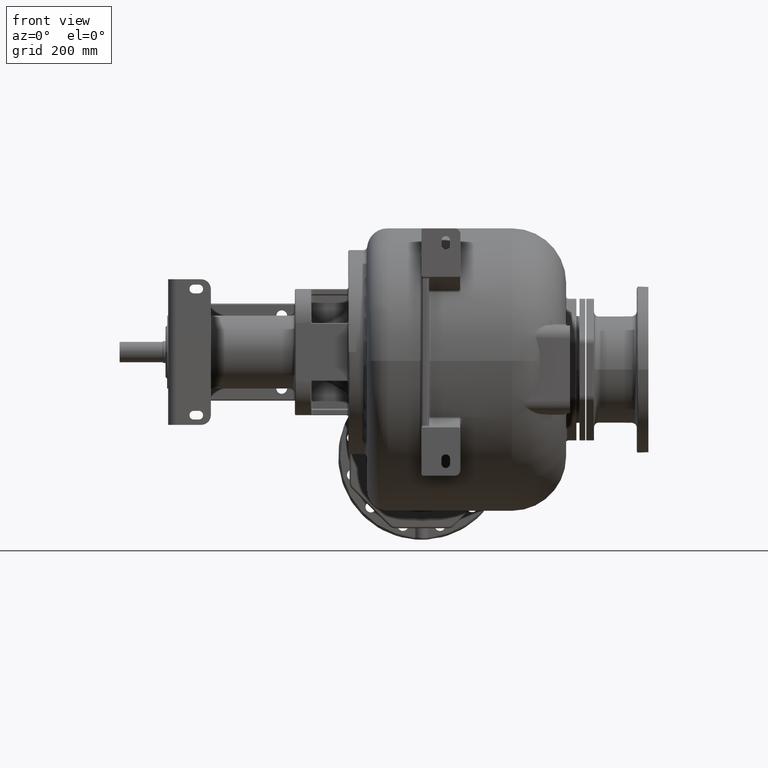
[diagram: clean part render]
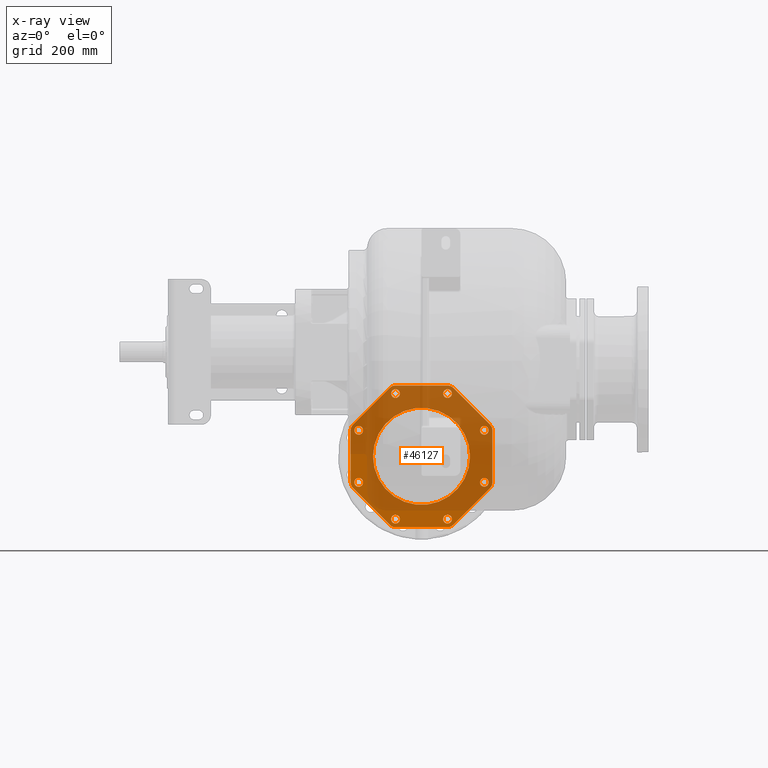
[diagram: x-ray — body ghosted, one internal face saturated and labeled with its STEP entity id]
A machine part, front view, then the same camera in x-ray: the body is ghosted and one INTERNAL B-rep face — a face not visible from any outside direction — is saturated and labeled: STEP entity #46127.
In plain terms, the highlighted planar face has unit normal (0, -1, 0).
Its self-contained STEP definition (entity closure, byte-faithful):
#43880=CARTESIAN_POINT('',(-5.E1,6.92E2,-2.15E2));
#43881=DIRECTION('',(0.E0,-1.E0,0.E0));
#43882=DIRECTION('',(-1.E0,0.E0,0.E0));
#43883=AXIS2_PLACEMENT_3D('',#43880,#43881,#43882);
#44194=CARTESIAN_POINT('',(-5.E1,6.92E2,-2.15E2));
#44195=DIRECTION('',(0.E0,-1.E0,0.E0));
#44196=DIRECTION('',(1.E0,0.E0,0.E0));
#44197=AXIS2_PLACEMENT_3D('',#44194,#44195,#44196);
#44203=CARTESIAN_POINT('',(7.934313455158E1,6.92E2,-1.614243194689E2));
#44204=DIRECTION('',(0.E0,1.E0,0.E0));
#44205=DIRECTION('',(1.E0,0.E0,0.E0));
#44206=AXIS2_PLACEMENT_3D('',#44203,#44204,#44205);
#44208=CARTESIAN_POINT('',(7.934313455158E1,6.92E2,-1.614243194689E2));
#44209=DIRECTION('',(0.E0,1.E0,0.E0));
#44210=DIRECTION('',(-1.E0,0.E0,0.E0));
#44211=AXIS2_PLACEMENT_3D('',#44208,#44209,#44210);
#44213=CARTESIAN_POINT('',(7.934313455158E1,6.92E2,-2.685756805311E2));
#44214=DIRECTION('',(0.E0,1.E0,0.E0));
#44215=DIRECTION('',(7.071067811865E-1,0.E0,-7.071067811866E-1));
#44216=AXIS2_PLACEMENT_3D('',#44213,#44214,#44215);
#44218=CARTESIAN_POINT('',(7.934313455158E1,6.92E2,-2.685756805311E2));
#44219=DIRECTION('',(0.E0,1.E0,0.E0));
#44220=DIRECTION('',(-7.071067811865E-1,0.E0,7.071067811865E-1));
#44221=AXIS2_PLACEMENT_3D('',#44218,#44219,#44220);
#44223=CARTESIAN_POINT('',(3.575680531113E0,6.92E2,-3.443431345516E2));
#44224=DIRECTION('',(0.E0,1.E0,0.E0));
#44225=DIRECTION('',(0.E0,0.E0,-1.E0));
#44226=AXIS2_PLACEMENT_3D('',#44223,#44224,#44225);
#44228=CARTESIAN_POINT('',(3.575680531113E0,6.92E2,-3.443431345516E2));
#44229=DIRECTION('',(0.E0,1.E0,0.E0));
#44230=DIRECTION('',(0.E0,0.E0,1.E0));
#44231=AXIS2_PLACEMENT_3D('',#44228,#44229,#44230);
#44233=CARTESIAN_POINT('',(-1.035756805311E2,6.92E2,-3.443431345516E2));
#44234=DIRECTION('',(0.E0,1.E0,0.E0));
#44235=DIRECTION('',(-7.071067811866E-1,0.E0,-7.071067811865E-1));
#44236=AXIS2_PLACEMENT_3D('',#44233,#44234,#44235);
#44238=CARTESIAN_POINT('',(-1.035756805311E2,6.92E2,-3.443431345516E2));
#44239=DIRECTION('',(0.E0,1.E0,0.E0));
#44240=DIRECTION('',(7.071067811865E-1,0.E0,7.071067811866E-1));
#44241=AXIS2_PLACEMENT_3D('',#44238,#44239,#44240);
#44243=CARTESIAN_POINT('',(-1.793431345516E2,6.92E2,-2.685756805311E2));
#44244=DIRECTION('',(0.E0,1.E0,0.E0));
#44245=DIRECTION('',(-1.E0,0.E0,0.E0));
#44246=AXIS2_PLACEMENT_3D('',#44243,#44244,#44245);
#44248=CARTESIAN_POINT('',(-1.793431345516E2,6.92E2,-2.685756805311E2));
#44249=DIRECTION('',(0.E0,1.E0,0.E0));
#44250=DIRECTION('',(1.E0,0.E0,0.E0));
#44251=AXIS2_PLACEMENT_3D('',#44248,#44249,#44250);
#44253=CARTESIAN_POINT('',(-1.793431345516E2,6.92E2,-1.614243194689E2));
#44254=DIRECTION('',(0.E0,1.E0,0.E0));
#44255=DIRECTION('',(-7.071067811865E-1,0.E0,7.071067811866E-1));
#44256=AXIS2_PLACEMENT_3D('',#44253,#44254,#44255);
#44258=CARTESIAN_POINT('',(-1.793431345516E2,6.92E2,-1.614243194689E2));
#44259=DIRECTION('',(0.E0,1.E0,0.E0));
#44260=DIRECTION('',(7.071067811865E-1,0.E0,-7.071067811865E-1));
#44261=AXIS2_PLACEMENT_3D('',#44258,#44259,#44260);
#44263=CARTESIAN_POINT('',(-1.035756805311E2,6.92E2,-8.565686544842E1));
#44264=DIRECTION('',(0.E0,1.E0,0.E0));
#44265=DIRECTION('',(0.E0,0.E0,1.E0));
#44266=AXIS2_PLACEMENT_3D('',#44263,#44264,#44265);
#44268=CARTESIAN_POINT('',(-1.035756805311E2,6.92E2,-8.565686544842E1));
#44269=DIRECTION('',(0.E0,1.E0,0.E0));
#44270=DIRECTION('',(0.E0,0.E0,-1.E0));
#44271=AXIS2_PLACEMENT_3D('',#44268,#44269,#44270);
#44273=CARTESIAN_POINT('',(3.575680531113E0,6.92E2,-8.565686544842E1));
#44274=DIRECTION('',(0.E0,1.E0,0.E0));
#44275=DIRECTION('',(7.071067811865E-1,0.E0,7.071067811865E-1));
#44276=AXIS2_PLACEMENT_3D('',#44273,#44274,#44275);
#44278=CARTESIAN_POINT('',(3.575680531113E0,6.92E2,-8.565686544842E1));
#44279=DIRECTION('',(0.E0,1.E0,0.E0));
#44280=DIRECTION('',(-7.071067811865E-1,0.E0,-7.071067811865E-1));
#44281=AXIS2_PLACEMENT_3D('',#44278,#44279,#44280);
#44283=DIRECTION('',(0.E0,0.E0,-1.E0));
#44284=VECTOR('',#44283,1.076955262170E2);
#44285=CARTESIAN_POINT('',(9.6E1,6.92E2,-1.611522368915E2));
#44286=LINE('',#44285,#44284);
#44299=CARTESIAN_POINT('',(8.E1,6.92E2,-1.611522368915E2));
#44300=DIRECTION('',(0.E0,-1.E0,0.E0));
#44301=DIRECTION('',(1.E0,0.E0,0.E0));
#44302=AXIS2_PLACEMENT_3D('',#44299,#44300,#44301);
#44309=DIRECTION('',(7.071067811865E-1,0.E0,-7.071067811865E-1));
#44310=VECTOR('',#44309,1.076955262170E2);
#44311=CARTESIAN_POINT('',(1.516147160749E1,6.92E2,-7.368629150102E1));
#44312=LINE('',#44311,#44310);
#44325=CARTESIAN_POINT('',(3.847763108502E0,6.92E2,-8.5E1));
#44326=DIRECTION('',(0.E0,-1.E0,0.E0));
#44327=DIRECTION('',(7.071067811865E-1,0.E0,7.071067811865E-1));
#44328=AXIS2_PLACEMENT_3D('',#44325,#44326,#44327);
#44335=DIRECTION('',(1.E0,0.E0,0.E0));
#44336=VECTOR('',#44335,1.076955262170E2);
#44337=CARTESIAN_POINT('',(-1.038477631085E2,6.92E2,-6.9E1));
#44338=LINE('',#44337,#44336);
#44351=CARTESIAN_POINT('',(-1.038477631085E2,6.92E2,-8.5E1));
#44352=DIRECTION('',(0.E0,-1.E0,0.E0));
#44353=DIRECTION('',(0.E0,0.E0,1.E0));
#44354=AXIS2_PLACEMENT_3D('',#44351,#44352,#44353);
#44361=DIRECTION('',(7.071067811865E-1,0.E0,7.071067811865E-1));
#44362=VECTOR('',#44361,1.076955262170E2);
#44363=CARTESIAN_POINT('',(-1.913137084990E2,6.92E2,-1.498385283925E2));
#44364=LINE('',#44363,#44362);
#44377=CARTESIAN_POINT('',(-1.8E2,6.92E2,-1.611522368915E2));
#44378=DIRECTION('',(0.E0,-1.E0,0.E0));
#44379=DIRECTION('',(-7.071067811865E-1,0.E0,7.071067811866E-1));
#44380=AXIS2_PLACEMENT_3D('',#44377,#44378,#44379);
#44387=DIRECTION('',(0.E0,0.E0,1.E0));
#44388=VECTOR('',#44387,1.076955262170E2);
#44389=CARTESIAN_POINT('',(-1.96E2,6.92E2,-2.688477631085E2));
#44390=LINE('',#44389,#44388);
#44403=CARTESIAN_POINT('',(-1.8E2,6.92E2,-2.688477631085E2));
#44404=DIRECTION('',(0.E0,-1.E0,0.E0));
#44405=DIRECTION('',(-1.E0,0.E0,0.E0));
#44406=AXIS2_PLACEMENT_3D('',#44403,#44404,#44405);
#44413=DIRECTION('',(-7.071067811865E-1,0.E0,7.071067811865E-1));
#44414=VECTOR('',#44413,1.076955262170E2);
#44415=CARTESIAN_POINT('',(-1.151614716075E2,6.92E2,-3.563137084990E2));
#44416=LINE('',#44415,#44414);
#44429=CARTESIAN_POINT('',(-1.038477631085E2,6.92E2,-3.45E2));
#44430=DIRECTION('',(0.E0,-1.E0,0.E0));
#44431=DIRECTION('',(-7.071067811865E-1,0.E0,-7.071067811865E-1));
#44432=AXIS2_PLACEMENT_3D('',#44429,#44430,#44431);
#44439=DIRECTION('',(-1.E0,0.E0,0.E0));
#44440=VECTOR('',#44439,1.076955262170E2);
#44441=CARTESIAN_POINT('',(3.847763108502E0,6.92E2,-3.61E2));
#44442=LINE('',#44441,#44440);
#44455=CARTESIAN_POINT('',(3.847763108502E0,6.92E2,-3.45E2));
#44456=DIRECTION('',(0.E0,-1.E0,0.E0));
#44457=DIRECTION('',(0.E0,0.E0,-1.E0));
#44458=AXIS2_PLACEMENT_3D('',#44455,#44456,#44457);
#44465=DIRECTION('',(-7.071067811865E-1,0.E0,-7.071067811865E-1));
#44466=VECTOR('',#44465,1.076955262170E2);
#44467=CARTESIAN_POINT('',(9.131370849898E1,6.92E2,-2.801614716075E2));
#44468=LINE('',#44467,#44466);
#44481=CARTESIAN_POINT('',(8.E1,6.92E2,-2.688477631085E2));
#44482=DIRECTION('',(0.E0,-1.E0,0.E0));
#44483=DIRECTION('',(7.071067811865E-1,0.E0,-7.071067811866E-1));
#44484=AXIS2_PLACEMENT_3D('',#44481,#44482,#44483);
#45495=CARTESIAN_POINT('',(9.6E1,6.92E2,-1.611522368915E2));
#45496=CARTESIAN_POINT('',(9.6E1,6.92E2,-2.688477631085E2));
#45497=VERTEX_POINT('',#45495);
#45498=VERTEX_POINT('',#45496);
#45499=CARTESIAN_POINT('',(9.131370849898E1,6.92E2,-2.801614716075E2));
#45500=CARTESIAN_POINT('',(1.516147160749E1,6.92E2,-3.563137084990E2));
#45501=VERTEX_POINT('',#45499);
#45502=VERTEX_POINT('',#45500);
#45503=CARTESIAN_POINT('',(3.847763108502E0,6.92E2,-3.61E2));
#45504=CARTESIAN_POINT('',(-1.038477631085E2,6.92E2,-3.61E2));
#45505=VERTEX_POINT('',#45503);
#45506=VERTEX_POINT('',#45504);
#45507=CARTESIAN_POINT('',(-1.96E2,6.92E2,-2.688477631085E2));
#45508=CARTESIAN_POINT('',(-1.96E2,6.92E2,-1.611522368915E2));
#45509=VERTEX_POINT('',#45507);
#45510=VERTEX_POINT('',#45508);
#45511=CARTESIAN_POINT('',(-1.913137084990E2,6.92E2,-1.498385283925E2));
#45512=CARTESIAN_POINT('',(-1.151614716075E2,6.92E2,-7.368629150102E1));
#45513=VERTEX_POINT('',#45511);
#45514=VERTEX_POINT('',#45512);
#45515=CARTESIAN_POINT('',(-1.038477631085E2,6.92E2,-6.9E1));
#45516=CARTESIAN_POINT('',(3.847763108502E0,6.92E2,-6.9E1));
#45517=VERTEX_POINT('',#45515);
#45518=VERTEX_POINT('',#45516);
#45519=CARTESIAN_POINT('',(-1.151614716075E2,6.92E2,-3.563137084990E2));
#45520=CARTESIAN_POINT('',(-1.913137084990E2,6.92E2,-2.801614716075E2));
#45521=VERTEX_POINT('',#45519);
#45522=VERTEX_POINT('',#45520);
#45523=CARTESIAN_POINT('',(1.516147160749E1,6.92E2,-7.368629150102E1));
#45524=CARTESIAN_POINT('',(9.131370849898E1,6.92E2,-1.498385283925E2));
#45525=VERTEX_POINT('',#45523);
#45526=VERTEX_POINT('',#45524);
#45535=CARTESIAN_POINT('',(-1.5E2,6.92E2,-2.15E2));
#45536=CARTESIAN_POINT('',(5.E1,6.92E2,-2.15E2));
#45537=VERTEX_POINT('',#45535);
#45538=VERTEX_POINT('',#45536);
#45635=CARTESIAN_POINT('',(8.834313455158E1,6.92E2,-1.614243194689E2));
#45637=VERTEX_POINT('',#45635);
#45639=CARTESIAN_POINT('',(7.034313455158E1,6.92E2,-1.614243194689E2));
#45641=VERTEX_POINT('',#45639);
#45643=CARTESIAN_POINT('',(8.570709558226E1,6.92E2,-2.749396415618E2));
#45645=VERTEX_POINT('',#45643);
#45647=CARTESIAN_POINT('',(7.297917352090E1,6.92E2,-2.622117195004E2));
#45649=VERTEX_POINT('',#45647);
#45651=CARTESIAN_POINT('',(3.575680531113E0,6.92E2,-3.533431345516E2));
#45653=VERTEX_POINT('',#45651);
#45655=CARTESIAN_POINT('',(3.575680531113E0,6.92E2,-3.353431345516E2));
#45657=VERTEX_POINT('',#45655);
#45659=CARTESIAN_POINT('',(-1.099396415618E2,6.92E2,-3.507070955823E2));
#45661=VERTEX_POINT('',#45659);
#45663=CARTESIAN_POINT('',(-9.721171950043E1,6.92E2,-3.379791735209E2));
#45665=VERTEX_POINT('',#45663);
#45667=CARTESIAN_POINT('',(-1.883431345516E2,6.92E2,-2.685756805311E2));
#45669=VERTEX_POINT('',#45667);
#45671=CARTESIAN_POINT('',(-1.703431345516E2,6.92E2,-2.685756805311E2));
#45673=VERTEX_POINT('',#45671);
#45675=CARTESIAN_POINT('',(-1.857070955823E2,6.92E2,-1.550603584382E2));
#45677=VERTEX_POINT('',#45675);
#45679=CARTESIAN_POINT('',(-1.729791735209E2,6.92E2,-1.677882804996E2));
#45681=VERTEX_POINT('',#45679);
#45683=CARTESIAN_POINT('',(-1.035756805311E2,6.92E2,-7.665686544842E1));
#45685=VERTEX_POINT('',#45683);
#45687=CARTESIAN_POINT('',(-1.035756805311E2,6.92E2,-9.465686544842E1));
#45689=VERTEX_POINT('',#45687);
#45691=CARTESIAN_POINT('',(9.939641561791E0,6.92E2,-7.929290441774E1));
#45693=VERTEX_POINT('',#45691);
#45695=CARTESIAN_POINT('',(-2.788280499566E0,6.92E2,-9.202082647910E1));
#45697=VERTEX_POINT('',#45695);
#46036=CARTESIAN_POINT('',(-5.E1,6.92E2,-2.15E2));
#46037=DIRECTION('',(0.E0,-1.E0,0.E0));
#46038=DIRECTION('',(0.E0,0.E0,-1.E0));
#46039=AXIS2_PLACEMENT_3D('',#46036,#46037,#46038);
#46040=PLANE('',#46039);
#46042=ORIENTED_EDGE('',*,*,#46041,.T.);
#46044=ORIENTED_EDGE('',*,*,#46043,.F.);
#46046=ORIENTED_EDGE('',*,*,#46045,.T.);
#46048=ORIENTED_EDGE('',*,*,#46047,.F.);
#46050=ORIENTED_EDGE('',*,*,#46049,.T.);
#46052=ORIENTED_EDGE('',*,*,#46051,.F.);
#46054=ORIENTED_EDGE('',*,*,#46053,.T.);
#46056=ORIENTED_EDGE('',*,*,#46055,.F.);
#46058=ORIENTED_EDGE('',*,*,#46057,.T.);
#46060=ORIENTED_EDGE('',*,*,#46059,.F.);
#46062=ORIENTED_EDGE('',*,*,#46061,.T.);
#46064=ORIENTED_EDGE('',*,*,#46063,.F.);
#46066=ORIENTED_EDGE('',*,*,#46065,.T.);
#46068=ORIENTED_EDGE('',*,*,#46067,.F.);
#46070=ORIENTED_EDGE('',*,*,#46069,.T.);
#46072=ORIENTED_EDGE('',*,*,#46071,.F.);
#46073=EDGE_LOOP('',(#46042,#46044,#46046,#46048,#46050,#46052,#46054,#46056,
#46058,#46060,#46062,#46064,#46066,#46068,#46070,#46072));
#46074=FACE_OUTER_BOUND('',#46073,.F.);
#46075=ORIENTED_EDGE('',*,*,#45927,.T.);
#46076=ORIENTED_EDGE('',*,*,#46030,.T.);
#46077=EDGE_LOOP('',(#46075,#46076));
#46078=FACE_BOUND('',#46077,.F.);
#46080=ORIENTED_EDGE('',*,*,#46079,.F.);
#46082=ORIENTED_EDGE('',*,*,#46081,.F.);
#46083=EDGE_LOOP('',(#46080,#46082));
#46084=FACE_BOUND('',#46083,.F.);
#46086=ORIENTED_EDGE('',*,*,#46085,.F.);
#46088=ORIENTED_EDGE('',*,*,#46087,.F.);
#46089=EDGE_LOOP('',(#46086,#46088));
#46090=FACE_BOUND('',#46089,.F.);
#46092=ORIENTED_EDGE('',*,*,#46091,.F.);
#46094=ORIENTED_EDGE('',*,*,#46093,.F.);
#46095=EDGE_LOOP('',(#46092,#46094));
#46096=FACE_BOUND('',#46095,.F.);
#46098=ORIENTED_EDGE('',*,*,#46097,.F.);
#46100=ORIENTED_EDGE('',*,*,#46099,.F.);
#46101=EDGE_LOOP('',(#46098,#46100));
#46102=FACE_BOUND('',#46101,.F.);
#46104=ORIENTED_EDGE('',*,*,#46103,.F.);
#46106=ORIENTED_EDGE('',*,*,#46105,.F.);
#46107=EDGE_LOOP('',(#46104,#46106));
#46108=FACE_BOUND('',#46107,.F.);
#46110=ORIENTED_EDGE('',*,*,#46109,.F.);
#46112=ORIENTED_EDGE('',*,*,#46111,.F.);
#46113=EDGE_LOOP('',(#46110,#46112));
#46114=FACE_BOUND('',#46113,.F.);
#46116=ORIENTED_EDGE('',*,*,#46115,.F.);
#46118=ORIENTED_EDGE('',*,*,#46117,.F.);
#46119=EDGE_LOOP('',(#46116,#46118));
#46120=FACE_BOUND('',#46119,.F.);
#46122=ORIENTED_EDGE('',*,*,#46121,.F.);
#46124=ORIENTED_EDGE('',*,*,#46123,.F.);
#46125=EDGE_LOOP('',(#46122,#46124));
#46126=FACE_BOUND('',#46125,.F.);
#46127=ADVANCED_FACE('',(#46074,#46078,#46084,#46090,#46096,#46102,#46108,
#46114,#46120,#46126),#46040,.T.);
#43884=CIRCLE('',#43883,1.E2);
#44198=CIRCLE('',#44197,1.E2);
#44207=CIRCLE('',#44206,9.E0);
#44212=CIRCLE('',#44211,9.E0);
#44217=CIRCLE('',#44216,9.E0);
#44222=CIRCLE('',#44221,9.E0);
#44227=CIRCLE('',#44226,9.E0);
#44232=CIRCLE('',#44231,9.E0);
#44237=CIRCLE('',#44236,9.E0);
#44242=CIRCLE('',#44241,9.E0);
#44247=CIRCLE('',#44246,9.E0);
#44252=CIRCLE('',#44251,9.E0);
#44257=CIRCLE('',#44256,9.E0);
#44262=CIRCLE('',#44261,9.E0);
#44267=CIRCLE('',#44266,9.E0);
#44272=CIRCLE('',#44271,9.E0);
#44277=CIRCLE('',#44276,9.E0);
#44282=CIRCLE('',#44281,9.E0);
#44303=CIRCLE('',#44302,1.6E1);
#44329=CIRCLE('',#44328,1.6E1);
#44355=CIRCLE('',#44354,1.6E1);
#44381=CIRCLE('',#44380,1.6E1);
#44407=CIRCLE('',#44406,1.6E1);
#44433=CIRCLE('',#44432,1.6E1);
#44459=CIRCLE('',#44458,1.6E1);
#44485=CIRCLE('',#44484,1.6E1);
#45927=EDGE_CURVE('',#45537,#45538,#43884,.T.);
#46030=EDGE_CURVE('',#45538,#45537,#44198,.T.);
#46041=EDGE_CURVE('',#45497,#45498,#44286,.T.);
#46043=EDGE_CURVE('',#45501,#45498,#44485,.T.);
#46045=EDGE_CURVE('',#45501,#45502,#44468,.T.);
#46047=EDGE_CURVE('',#45505,#45502,#44459,.T.);
#46049=EDGE_CURVE('',#45505,#45506,#44442,.T.);
#46051=EDGE_CURVE('',#45521,#45506,#44433,.T.);
#46053=EDGE_CURVE('',#45521,#45522,#44416,.T.);
#46055=EDGE_CURVE('',#45509,#45522,#44407,.T.);
#46057=EDGE_CURVE('',#45509,#45510,#44390,.T.);
#46059=EDGE_CURVE('',#45513,#45510,#44381,.T.);
#46061=EDGE_CURVE('',#45513,#45514,#44364,.T.);
#46063=EDGE_CURVE('',#45517,#45514,#44355,.T.);
#46065=EDGE_CURVE('',#45517,#45518,#44338,.T.);
#46067=EDGE_CURVE('',#45525,#45518,#44329,.T.);
#46069=EDGE_CURVE('',#45525,#45526,#44312,.T.);
#46071=EDGE_CURVE('',#45497,#45526,#44303,.T.);
#46079=EDGE_CURVE('',#45637,#45641,#44207,.T.);
#46081=EDGE_CURVE('',#45641,#45637,#44212,.T.);
#46085=EDGE_CURVE('',#45645,#45649,#44217,.T.);
#46087=EDGE_CURVE('',#45649,#45645,#44222,.T.);
#46091=EDGE_CURVE('',#45653,#45657,#44227,.T.);
#46093=EDGE_CURVE('',#45657,#45653,#44232,.T.);
#46097=EDGE_CURVE('',#45661,#45665,#44237,.T.);
#46099=EDGE_CURVE('',#45665,#45661,#44242,.T.);
#46103=EDGE_CURVE('',#45669,#45673,#44247,.T.);
#46105=EDGE_CURVE('',#45673,#45669,#44252,.T.);
#46109=EDGE_CURVE('',#45677,#45681,#44257,.T.);
#46111=EDGE_CURVE('',#45681,#45677,#44262,.T.);
#46115=EDGE_CURVE('',#45685,#45689,#44267,.T.);
#46117=EDGE_CURVE('',#45689,#45685,#44272,.T.);
#46121=EDGE_CURVE('',#45693,#45697,#44277,.T.);
#46123=EDGE_CURVE('',#45697,#45693,#44282,.T.);